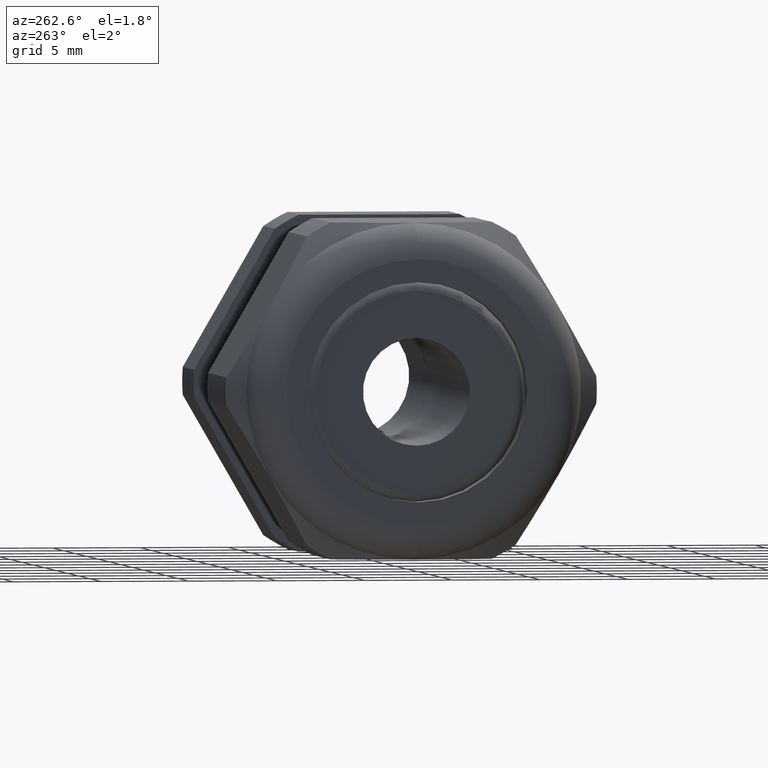
[diagram: clean part render]
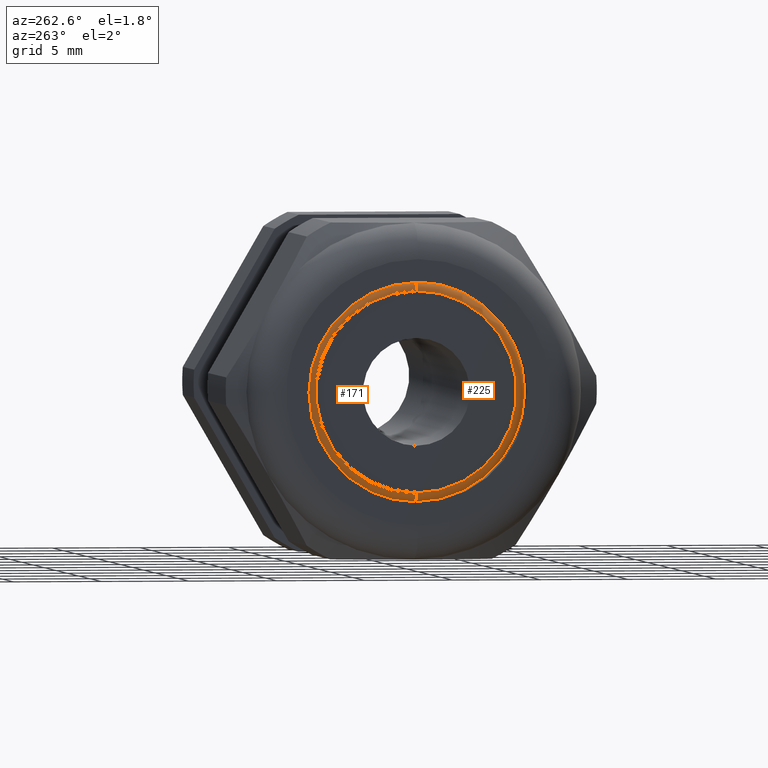
[diagram: same view with one multi-face feature highlighted, each face labeled with its STEP entity id]
A machine part, auxiliary view. The highlighted faces form ONE feature: a constant-radius fillet chain: 2 tangent blend faces with common blend radius 0.508 mm. The faces share edges in the B-rep.
Their STEP definitions:
[1] entity #171 (Torus):
#171 = ADVANCED_FACE ( 'NONE', ( #1011 ), #1070, .T. ) ;
#172 = EDGE_LOOP ( 'NONE', ( #173, #177, #180, #183 ) ) ;
#173 = ORIENTED_EDGE ( 'NONE', *, *, #174, .T. ) ;
#174 = EDGE_CURVE ( 'NONE', #175, #176, #1064, .T. ) ;
#175 = VERTEX_POINT ( 'NONE', #1060 ) ;
#176 = VERTEX_POINT ( 'NONE', #1059 ) ;
#177 = ORIENTED_EDGE ( 'NONE', *, *, #178, .T. ) ;
#178 = EDGE_CURVE ( 'NONE', #176, #179, #1058, .T. ) ;
#179 = VERTEX_POINT ( 'NONE', #1053 ) ;
#180 = ORIENTED_EDGE ( 'NONE', *, *, #181, .F. ) ;
#181 = EDGE_CURVE ( 'NONE', #182, #179, #1052, .T. ) ;
#182 = VERTEX_POINT ( 'NONE', #1047 ) ;
#183 = ORIENTED_EDGE ( 'NONE', *, *, #184, .F. ) ;
#184 = EDGE_CURVE ( 'NONE', #175, #182, #1045, .T. ) ;
#1011 = FACE_OUTER_BOUND ( 'NONE', #172, .T. ) ;
#1041 = DIRECTION ( 'NONE',  ( 0.0000000000000000000, 0.0000000000000000000, -1.000000000000000000 ) ) ;
#1042 = DIRECTION ( 'NONE',  ( 0.0000000000000000000, -1.000000000000000000, 0.0000000000000000000 ) ) ;
#1043 = CARTESIAN_POINT ( 'NONE',  ( -1.129999999999999700, 0.0000000000000000000, -0.2249999999999999800 ) ) ;
#1044 = AXIS2_PLACEMENT_3D ( 'NONE', #1043, #1042, #1041 ) ;
#1045 = CIRCLE ( 'NONE', #1044, 0.02000000000000005900 ) ;
#1047 = CARTESIAN_POINT ( 'NONE',  ( -1.129999999999999700, 0.0000000000000000000, -0.2450000000000000500 ) ) ;
#1048 = DIRECTION ( 'NONE',  ( 0.0000000000000000000, 0.0000000000000000000, -1.000000000000000000 ) ) ;
#1049 = DIRECTION ( 'NONE',  ( 1.000000000000000000, 0.0000000000000000000, 0.0000000000000000000 ) ) ;
#1050 = CARTESIAN_POINT ( 'NONE',  ( -1.129999999999999700, 0.0000000000000000000, 0.0000000000000000000 ) ) ;
#1051 = AXIS2_PLACEMENT_3D ( 'NONE', #1050, #1049, #1048 ) ;
#1052 = CIRCLE ( 'NONE', #1051, 0.2450000000000000500 ) ;
#1053 = CARTESIAN_POINT ( 'NONE',  ( -1.129999999999999700, 3.000384657911016100E-017, 0.2450000000000000500 ) ) ;
#1054 = DIRECTION ( 'NONE',  ( 0.0000000000000000000, 1.224646799147352500E-016, 1.000000000000000000 ) ) ;
#1055 = DIRECTION ( 'NONE',  ( 0.0000000000000000000, 1.000000000000000000, -1.224646799147353200E-016 ) ) ;
#1056 = CARTESIAN_POINT ( 'NONE',  ( -1.129999999999999700, 2.755455298081544500E-017, 0.2249999999999999800 ) ) ;
#1057 = AXIS2_PLACEMENT_3D ( 'NONE', #1056, #1055, #1054 ) ;
#1058 = CIRCLE ( 'NONE', #1057, 0.02000000000000005900 ) ;
#1059 = CARTESIAN_POINT ( 'NONE',  ( -1.149999999999999700, 2.877919977996279800E-017, 0.2249999999999999800 ) ) ;
#1060 = CARTESIAN_POINT ( 'NONE',  ( -1.149999999999999700, 0.0000000000000000000, -0.2249999999999999800 ) ) ;
#1061 = DIRECTION ( 'NONE',  ( 0.0000000000000000000, 0.0000000000000000000, -1.000000000000000000 ) ) ;
#1062 = DIRECTION ( 'NONE',  ( 1.000000000000000000, 0.0000000000000000000, 0.0000000000000000000 ) ) ;
#1063 = AXIS2_PLACEMENT_3D ( 'NONE', #1069, #1062, #1061 ) ;
#1064 = CIRCLE ( 'NONE', #1063, 0.2249999999999999800 ) ;
#1065 = DIRECTION ( 'NONE',  ( 0.0000000000000000000, 0.0000000000000000000, -1.000000000000000000 ) ) ;
#1066 = DIRECTION ( 'NONE',  ( 1.000000000000000000, 0.0000000000000000000, 0.0000000000000000000 ) ) ;
#1067 = CARTESIAN_POINT ( 'NONE',  ( -1.129999999999999700, 0.0000000000000000000, 0.0000000000000000000 ) ) ;
#1068 = AXIS2_PLACEMENT_3D ( 'NONE', #1067, #1066, #1065 ) ;
#1069 = CARTESIAN_POINT ( 'NONE',  ( -1.149999999999999700, 0.0000000000000000000, 0.0000000000000000000 ) ) ;
#1070 = TOROIDAL_SURFACE ( 'NONE', #1068, 0.2249999999999999800, 0.02000000000000004200 ) ;
[2] entity #225 (Torus):
#150 = EDGE_CURVE ( 'NONE', #179, #182, #983, .T. ) ;
#175 = VERTEX_POINT ( 'NONE', #1060 ) ;
#176 = VERTEX_POINT ( 'NONE', #1059 ) ;
#178 = EDGE_CURVE ( 'NONE', #176, #179, #1058, .T. ) ;
#179 = VERTEX_POINT ( 'NONE', #1053 ) ;
#182 = VERTEX_POINT ( 'NONE', #1047 ) ;
#184 = EDGE_CURVE ( 'NONE', #175, #182, #1045, .T. ) ;
#211 = EDGE_LOOP ( 'NONE', ( #212, #213, #218, #219 ) ) ;
#212 = ORIENTED_EDGE ( 'NONE', *, *, #178, .F. ) ;
#213 = ORIENTED_EDGE ( 'NONE', *, *, #217, .T. ) ;
#217 = EDGE_CURVE ( 'NONE', #176, #175, #1110, .T. ) ;
#218 = ORIENTED_EDGE ( 'NONE', *, *, #184, .T. ) ;
#219 = ORIENTED_EDGE ( 'NONE', *, *, #150, .F. ) ;
#225 = ADVANCED_FACE ( 'NONE', ( #1163 ), #1162, .T. ) ;
#979 = DIRECTION ( 'NONE',  ( 0.0000000000000000000, 0.0000000000000000000, -1.000000000000000000 ) ) ;
#980 = DIRECTION ( 'NONE',  ( 1.000000000000000000, 0.0000000000000000000, 0.0000000000000000000 ) ) ;
#981 = CARTESIAN_POINT ( 'NONE',  ( -1.129999999999999700, 0.0000000000000000000, 0.0000000000000000000 ) ) ;
#982 = AXIS2_PLACEMENT_3D ( 'NONE', #981, #980, #979 ) ;
#983 = CIRCLE ( 'NONE', #982, 0.2450000000000000500 ) ;
#1041 = DIRECTION ( 'NONE',  ( 0.0000000000000000000, 0.0000000000000000000, -1.000000000000000000 ) ) ;
#1042 = DIRECTION ( 'NONE',  ( 0.0000000000000000000, -1.000000000000000000, 0.0000000000000000000 ) ) ;
#1043 = CARTESIAN_POINT ( 'NONE',  ( -1.129999999999999700, 0.0000000000000000000, -0.2249999999999999800 ) ) ;
#1044 = AXIS2_PLACEMENT_3D ( 'NONE', #1043, #1042, #1041 ) ;
#1045 = CIRCLE ( 'NONE', #1044, 0.02000000000000005900 ) ;
#1047 = CARTESIAN_POINT ( 'NONE',  ( -1.129999999999999700, 0.0000000000000000000, -0.2450000000000000500 ) ) ;
#1053 = CARTESIAN_POINT ( 'NONE',  ( -1.129999999999999700, 3.000384657911016100E-017, 0.2450000000000000500 ) ) ;
#1054 = DIRECTION ( 'NONE',  ( 0.0000000000000000000, 1.224646799147352500E-016, 1.000000000000000000 ) ) ;
#1055 = DIRECTION ( 'NONE',  ( 0.0000000000000000000, 1.000000000000000000, -1.224646799147353200E-016 ) ) ;
#1056 = CARTESIAN_POINT ( 'NONE',  ( -1.129999999999999700, 2.755455298081544500E-017, 0.2249999999999999800 ) ) ;
#1057 = AXIS2_PLACEMENT_3D ( 'NONE', #1056, #1055, #1054 ) ;
#1058 = CIRCLE ( 'NONE', #1057, 0.02000000000000005900 ) ;
#1059 = CARTESIAN_POINT ( 'NONE',  ( -1.149999999999999700, 2.877919977996279800E-017, 0.2249999999999999800 ) ) ;
#1060 = CARTESIAN_POINT ( 'NONE',  ( -1.149999999999999700, 0.0000000000000000000, -0.2249999999999999800 ) ) ;
#1106 = DIRECTION ( 'NONE',  ( 0.0000000000000000000, 0.0000000000000000000, -1.000000000000000000 ) ) ;
#1107 = DIRECTION ( 'NONE',  ( 1.000000000000000000, 0.0000000000000000000, 0.0000000000000000000 ) ) ;
#1108 = CARTESIAN_POINT ( 'NONE',  ( -1.149999999999999700, 0.0000000000000000000, 0.0000000000000000000 ) ) ;
#1109 = AXIS2_PLACEMENT_3D ( 'NONE', #1108, #1107, #1106 ) ;
#1110 = CIRCLE ( 'NONE', #1109, 0.2249999999999999800 ) ;
#1158 = DIRECTION ( 'NONE',  ( 0.0000000000000000000, 0.0000000000000000000, -1.000000000000000000 ) ) ;
#1159 = DIRECTION ( 'NONE',  ( 1.000000000000000000, 0.0000000000000000000, 0.0000000000000000000 ) ) ;
#1160 = CARTESIAN_POINT ( 'NONE',  ( -1.129999999999999700, 0.0000000000000000000, 0.0000000000000000000 ) ) ;
#1161 = AXIS2_PLACEMENT_3D ( 'NONE', #1160, #1159, #1158 ) ;
#1162 = TOROIDAL_SURFACE ( 'NONE', #1161, 0.2249999999999999800, 0.02000000000000004200 ) ;
#1163 = FACE_OUTER_BOUND ( 'NONE', #211, .T. ) ;